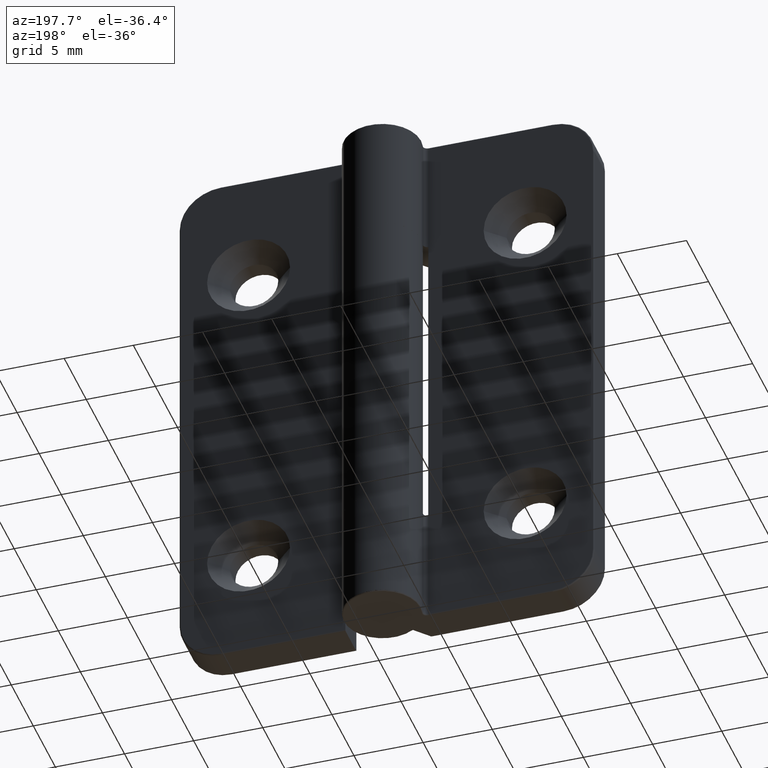
[diagram: clean part render]
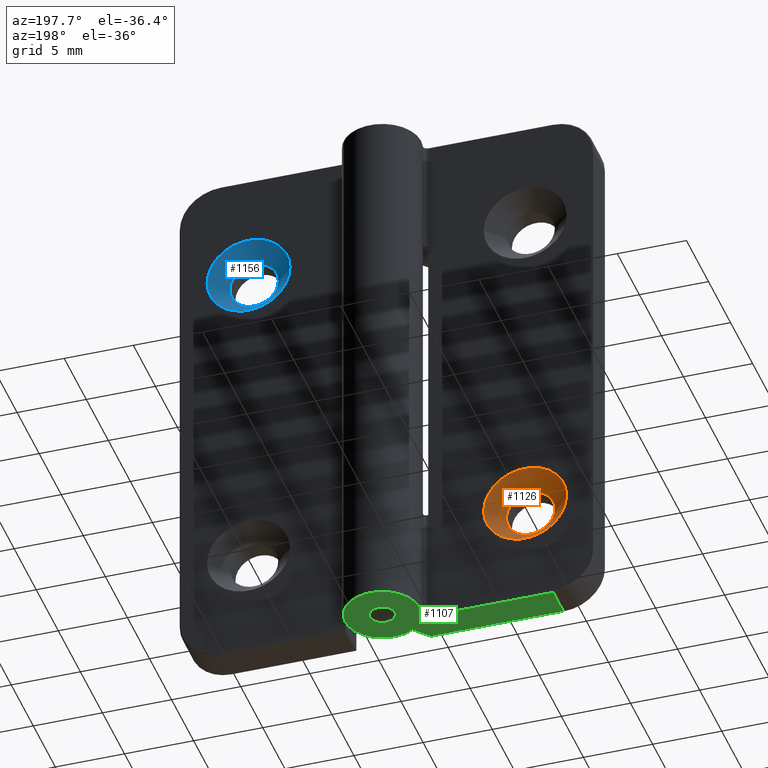
[diagram: same view with three faces highlighted in distinct colors, each labeled with its STEP entity id]
A machine part, auxiliary view with three faces highlighted in distinct colors.
Their STEP definitions:

[orange] entity #1126 — the highlighted conical surface has half-angle 45 deg.
#36=CONICAL_SURFACE('',#1248,2.375,45.);
#101=FACE_BOUND('',#314,.T.);
#156=CIRCLE('',#1237,3.);
#159=CIRCLE('',#1249,1.75);
#231=FACE_OUTER_BOUND('',#313,.T.);
#313=EDGE_LOOP('',(#925));
#314=EDGE_LOOP('',(#926));
#554=VERTEX_POINT('',#1896);
#557=VERTEX_POINT('',#1915);
#682=EDGE_CURVE('',#554,#554,#156,.T.);
#689=EDGE_CURVE('',#557,#557,#159,.T.);
#925=ORIENTED_EDGE('',*,*,#682,.F.);
#926=ORIENTED_EDGE('',*,*,#689,.F.);
#1126=ADVANCED_FACE('',(#231,#101),#36,.F.);
#1237=AXIS2_PLACEMENT_3D('',#1897,#1503,#1504);
#1248=AXIS2_PLACEMENT_3D('',#1914,#1529,#1530);
#1249=AXIS2_PLACEMENT_3D('',#1916,#1531,#1532);
#1503=DIRECTION('center_axis',(0.,-1.,0.));
#1504=DIRECTION('ref_axis',(1.,0.,0.));
#1529=DIRECTION('center_axis',(0.,1.,0.));
#1530=DIRECTION('ref_axis',(1.,0.,0.));
#1531=DIRECTION('center_axis',(0.,1.,0.));
#1532=DIRECTION('ref_axis',(1.,0.,0.));
#1896=CARTESIAN_POINT('',(-7.,2.5,-12.));
#1897=CARTESIAN_POINT('Origin',(-10.,2.5,-12.));
#1914=CARTESIAN_POINT('Origin',(-10.,1.875,-12.));
#1915=CARTESIAN_POINT('',(-8.25,1.25,-12.));
#1916=CARTESIAN_POINT('Origin',(-10.,1.25,-12.));

[blue] entity #1156 — the highlighted conical surface has half-angle 45 deg.
#38=CONICAL_SURFACE('',#1313,2.375,45.);
#112=FACE_BOUND('',#355,.T.);
#190=CIRCLE('',#1302,3.);
#193=CIRCLE('',#1314,1.75);
#261=FACE_OUTER_BOUND('',#354,.T.);
#354=EDGE_LOOP('',(#1059));
#355=EDGE_LOOP('',(#1060));
#598=VERTEX_POINT('',#2038);
#601=VERTEX_POINT('',#2057);
#749=EDGE_CURVE('',#598,#598,#190,.T.);
#756=EDGE_CURVE('',#601,#601,#193,.T.);
#1059=ORIENTED_EDGE('',*,*,#749,.F.);
#1060=ORIENTED_EDGE('',*,*,#756,.F.);
#1156=ADVANCED_FACE('',(#261,#112),#38,.F.);
#1302=AXIS2_PLACEMENT_3D('',#2039,#1666,#1667);
#1313=AXIS2_PLACEMENT_3D('',#2056,#1692,#1693);
#1314=AXIS2_PLACEMENT_3D('',#2058,#1694,#1695);
#1666=DIRECTION('center_axis',(0.,-1.,0.));
#1667=DIRECTION('ref_axis',(1.,0.,0.));
#1692=DIRECTION('center_axis',(0.,1.,0.));
#1693=DIRECTION('ref_axis',(1.,0.,0.));
#1694=DIRECTION('center_axis',(0.,1.,0.));
#1695=DIRECTION('ref_axis',(1.,0.,0.));
#2038=CARTESIAN_POINT('',(-7.,2.5,-12.));
#2039=CARTESIAN_POINT('Origin',(-10.,2.5,-12.));
#2056=CARTESIAN_POINT('Origin',(-10.,1.875,-12.));
#2057=CARTESIAN_POINT('',(-8.25,1.25,-12.));
#2058=CARTESIAN_POINT('Origin',(-10.,1.25,-12.));

[green] entity #1107 — the highlighted planar face has unit normal (0, 0, 1).
#95=FACE_BOUND('',#289,.T.);
#137=CIRCLE('',#1208,0.384210526315788);
#138=CIRCLE('',#1209,2.7);
#139=CIRCLE('',#1210,0.9);
#212=FACE_OUTER_BOUND('',#288,.T.);
#288=EDGE_LOOP('',(#841,#842,#843,#844,#845,#846));
#289=EDGE_LOOP('',(#847));
#383=LINE('',#1812,#452);
#386=LINE('',#1830,#455);
#388=LINE('',#1845,#457);
#389=LINE('',#1847,#458);
#452=VECTOR('',#1408,9.58805282407669);
#455=VECTOR('',#1433,1.48124381821327);
#457=VECTOR('',#1437,2.3);
#458=VECTOR('',#1438,9.);
#532=VERTEX_POINT('',#1809);
#533=VERTEX_POINT('',#1811);
#537=VERTEX_POINT('',#1829);
#539=VERTEX_POINT('',#1844);
#540=VERTEX_POINT('',#1846);
#541=VERTEX_POINT('',#1848);
#542=VERTEX_POINT('',#1851);
#643=EDGE_CURVE('',#532,#533,#383,.T.);
#652=EDGE_CURVE('',#533,#537,#386,.T.);
#655=EDGE_CURVE('',#539,#532,#388,.T.);
#656=EDGE_CURVE('',#540,#539,#389,.T.);
#657=EDGE_CURVE('',#541,#540,#137,.T.);
#658=EDGE_CURVE('',#537,#541,#138,.T.);
#659=EDGE_CURVE('',#542,#542,#139,.T.);
#841=ORIENTED_EDGE('',*,*,#643,.F.);
#842=ORIENTED_EDGE('',*,*,#655,.F.);
#843=ORIENTED_EDGE('',*,*,#656,.F.);
#844=ORIENTED_EDGE('',*,*,#657,.F.);
#845=ORIENTED_EDGE('',*,*,#658,.F.);
#846=ORIENTED_EDGE('',*,*,#652,.F.);
#847=ORIENTED_EDGE('',*,*,#659,.T.);
#1075=PLANE('',#1207);
#1107=ADVANCED_FACE('',(#212,#95),#1075,.F.);
#1207=AXIS2_PLACEMENT_3D('',#1843,#1435,#1436);
#1208=AXIS2_PLACEMENT_3D('',#1849,#1439,#1440);
#1209=AXIS2_PLACEMENT_3D('',#1850,#1441,#1442);
#1210=AXIS2_PLACEMENT_3D('',#1852,#1443,#1444);
#1408=DIRECTION('',(1.,7.83773951454306E-17,0.));
#1433=DIRECTION('',(0.660851295301948,0.75051686556515,0.));
#1435=DIRECTION('center_axis',(0.,0.,1.));
#1436=DIRECTION('ref_axis',(1.,0.,0.));
#1437=DIRECTION('',(0.,-1.,0.));
#1438=DIRECTION('',(-1.,0.,0.));
#1439=DIRECTION('center_axis',(0.,0.,-1.));
#1440=DIRECTION('ref_axis',(0.784882765533424,-0.619644288579023,0.));
#1441=DIRECTION('center_axis',(0.,0.,1.));
#1442=DIRECTION('ref_axis',(0.813977108855373,0.580896949776334,0.));
#1443=DIRECTION('center_axis',(0.,0.,1.));
#1444=DIRECTION('ref_axis',(-1.,0.,0.));
#1809=CARTESIAN_POINT('',(-12.,0.0999999999999993,-20.));
#1811=CARTESIAN_POINT('',(-2.41194717592331,0.0999999999999998,-20.));
#1812=CARTESIAN_POINT('',(-11.8021417344313,0.0999999999999993,-20.));
#1829=CARTESIAN_POINT('',(-1.43306527999907,1.21169846758318,-20.));
#1830=CARTESIAN_POINT('',(-3.52337416563521,-1.16222753371763,-20.));
#1843=CARTESIAN_POINT('Origin',(-8.60428346886252,1.24831920911848,-20.));
#1844=CARTESIAN_POINT('',(-12.,2.4,-20.));
#1845=CARTESIAN_POINT('',(-12.,1.87415960455924,-20.));
#1846=CARTESIAN_POINT('',(-3.,2.4,-20.));
#1847=CARTESIAN_POINT('',(-5.80214173443126,2.4,-20.));
#1848=CARTESIAN_POINT('',(-2.62627986348123,2.87337883959044,-20.));
#1849=CARTESIAN_POINT('Origin',(-3.,2.78421052631579,-20.));
#1850=CARTESIAN_POINT('Origin',(0.,3.5,-20.));
#1851=CARTESIAN_POINT('',(0.9,3.5,-20.));
#1852=CARTESIAN_POINT('Origin',(0.,3.5,-20.));